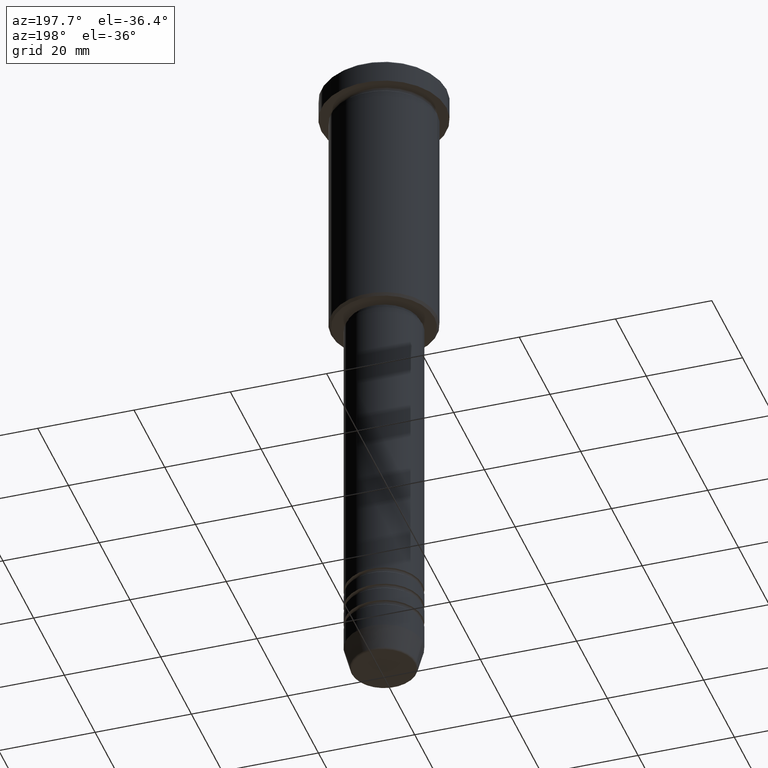
[diagram: clean part render]
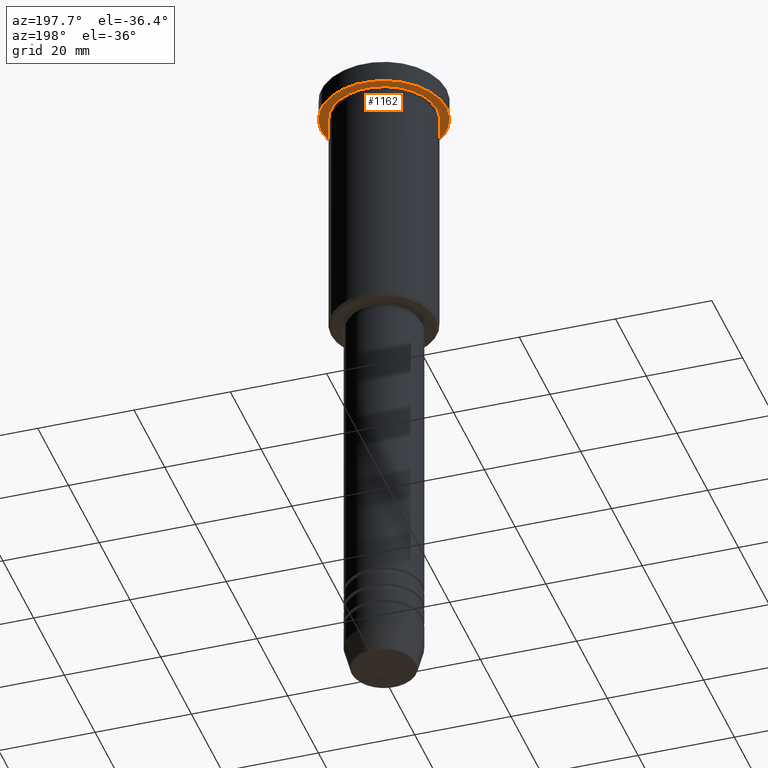
[diagram: same view with one face highlighted and labeled with its STEP entity id]
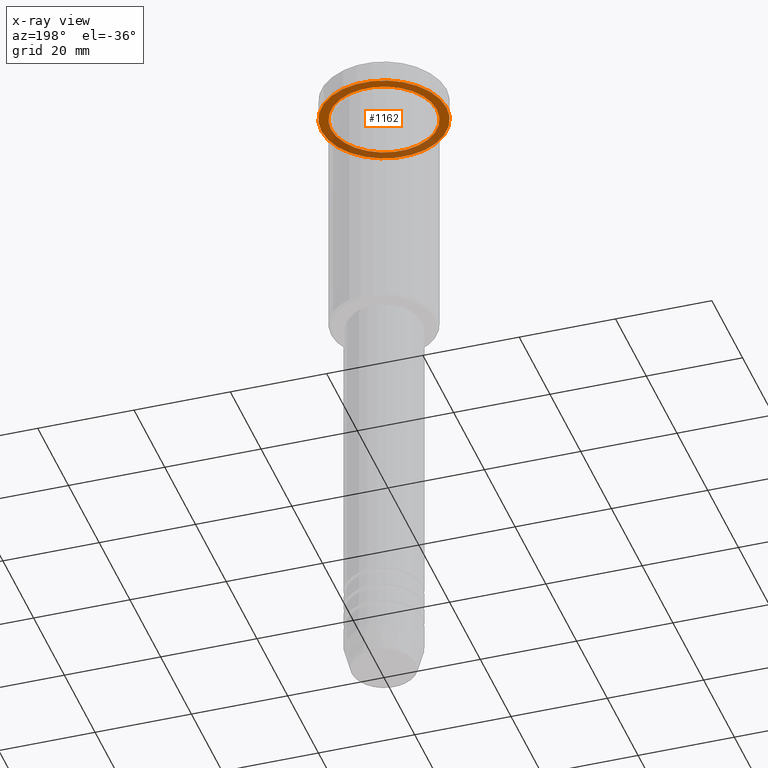
[diagram: x-ray of the same camera — body ghosted, the highlighted face saturated]
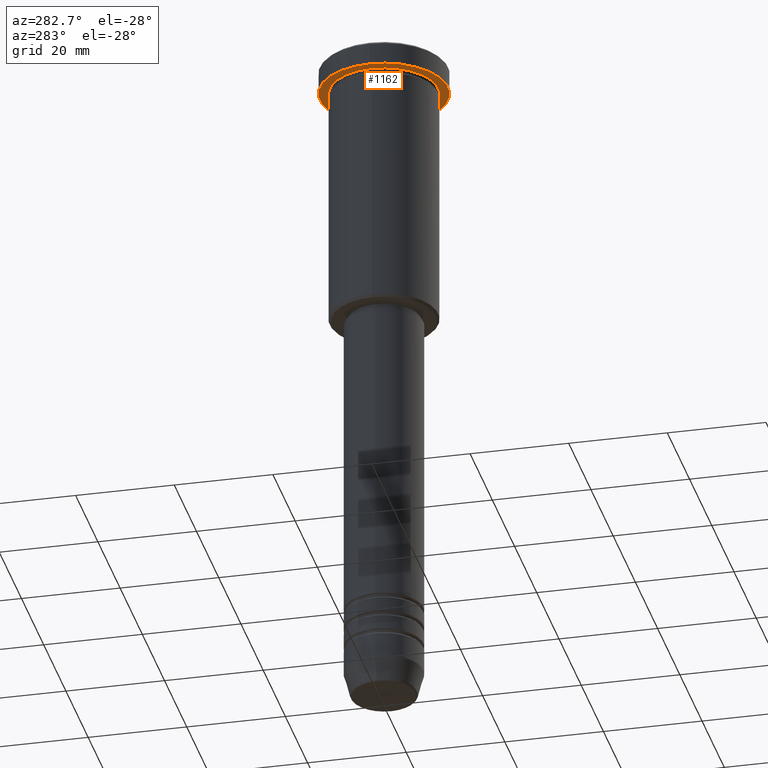
[diagram: same view with one face highlighted and labeled with its STEP entity id]
A machine part, auxiliary view. The second image highlights one B-rep face of the part: STEP entity #1162.
The next image is the same camera in x-ray: the body ghosted, the highlighted face saturated — about 31% of this face is hidden behind the body in this view.
A second angle (auxiliary view) of the same face is appended — the face is thin or edge-on in the first view.
In plain terms, the highlighted planar face has unit normal (0, 0, -1).
Its self-contained STEP definition (entity closure, byte-faithful):
#3 = DIRECTION ( 'NONE',  ( -1.000000000000000000, 0.000000000000000000, 0.000000000000000000 ) ) ;
#9 = FACE_OUTER_BOUND ( 'NONE', #835, .T. ) ;
#29 = FACE_BOUND ( 'NONE', #841, .T. ) ;
#44 = ORIENTED_EDGE ( 'NONE', *, *, #572, .F. ) ;
#128 = DIRECTION ( 'NONE',  ( 1.000000000000000000, 0.000000000000000000, 0.000000000000000000 ) ) ;
#184 = ORIENTED_EDGE ( 'NONE', *, *, #1090, .T. ) ;
#195 = PLANE ( 'NONE',  #1169 ) ;
#231 = CARTESIAN_POINT ( 'NONE',  ( 0.000000000000000000, 0.000000000000000000, -5.000000000000000000 ) ) ;
#285 = EDGE_CURVE ( 'NONE', #874, #385, #744, .T. ) ;
#292 = AXIS2_PLACEMENT_3D ( 'NONE', #683, #1037, #1147 ) ;
#316 = DIRECTION ( 'NONE',  ( -0.000000000000000000, -0.000000000000000000, 1.000000000000000000 ) ) ;
#333 = DIRECTION ( 'NONE',  ( -0.000000000000000000, -0.000000000000000000, 1.000000000000000000 ) ) ;
#347 = CARTESIAN_POINT ( 'NONE',  ( 13.00000000000000000, 0.000000000000000000, -5.000000000000000000 ) ) ;
#380 = AXIS2_PLACEMENT_3D ( 'NONE', #231, #316, #1038 ) ;
#385 = VERTEX_POINT ( 'NONE', #461 ) ;
#427 = CARTESIAN_POINT ( 'NONE',  ( -11.00000000000000000, 0.000000000000000000, -4.999999999999999112 ) ) ;
#429 = CIRCLE ( 'NONE', #696, 11.00000000000000000 ) ;
#461 = CARTESIAN_POINT ( 'NONE',  ( -13.00000000000000000, 1.592040838891559095E-15, -5.000000000000000000 ) ) ;
#484 = ORIENTED_EDGE ( 'NONE', *, *, #568, .T. ) ;
#568 = EDGE_CURVE ( 'NONE', #1120, #1125, #795, .T. ) ;
#572 = EDGE_CURVE ( 'NONE', #385, #874, #1050, .T. ) ;
#589 = CARTESIAN_POINT ( 'NONE',  ( 0.000000000000000000, 0.000000000000000000, -5.000000000000000000 ) ) ;
#605 = AXIS2_PLACEMENT_3D ( 'NONE', #589, #333, #128 ) ;
#683 = CARTESIAN_POINT ( 'NONE',  ( 0.000000000000000000, 0.000000000000000000, -5.000000000000000000 ) ) ;
#696 = AXIS2_PLACEMENT_3D ( 'NONE', #915, #1161, #3 ) ;
#744 = CIRCLE ( 'NONE', #380, 13.00000000000000000 ) ;
#746 = DIRECTION ( 'NONE',  ( 0.000000000000000000, 0.000000000000000000, -1.000000000000000000 ) ) ;
#795 = CIRCLE ( 'NONE', #292, 11.00000000000000000 ) ;
#835 = EDGE_LOOP ( 'NONE', ( #1145, #44 ) ) ;
#841 = EDGE_LOOP ( 'NONE', ( #484, #184 ) ) ;
#854 = CARTESIAN_POINT ( 'NONE',  ( 0.000000000000000000, 13.00000000000000000, -5.000000000000000000 ) ) ;
#874 = VERTEX_POINT ( 'NONE', #347 ) ;
#915 = CARTESIAN_POINT ( 'NONE',  ( 0.000000000000000000, 0.000000000000000000, -5.000000000000000000 ) ) ;
#993 = CARTESIAN_POINT ( 'NONE',  ( 11.00000000000000000, 1.347111479062088405E-15, -4.999999999999999112 ) ) ;
#1029 = DIRECTION ( 'NONE',  ( -1.000000000000000000, 0.000000000000000000, -0.000000000000000000 ) ) ;
#1037 = DIRECTION ( 'NONE',  ( -0.000000000000000000, -0.000000000000000000, 1.000000000000000000 ) ) ;
#1038 = DIRECTION ( 'NONE',  ( 1.000000000000000000, 0.000000000000000000, 0.000000000000000000 ) ) ;
#1050 = CIRCLE ( 'NONE', #605, 13.00000000000000000 ) ;
#1090 = EDGE_CURVE ( 'NONE', #1125, #1120, #429, .T. ) ;
#1120 = VERTEX_POINT ( 'NONE', #427 ) ;
#1125 = VERTEX_POINT ( 'NONE', #993 ) ;
#1145 = ORIENTED_EDGE ( 'NONE', *, *, #285, .F. ) ;
#1147 = DIRECTION ( 'NONE',  ( -1.000000000000000000, 0.000000000000000000, 0.000000000000000000 ) ) ;
#1161 = DIRECTION ( 'NONE',  ( -0.000000000000000000, -0.000000000000000000, 1.000000000000000000 ) ) ;
#1162 = ADVANCED_FACE ( 'NONE', ( #29, #9 ), #195, .T. ) ;
#1169 = AXIS2_PLACEMENT_3D ( 'NONE', #854, #746, #1029 ) ;